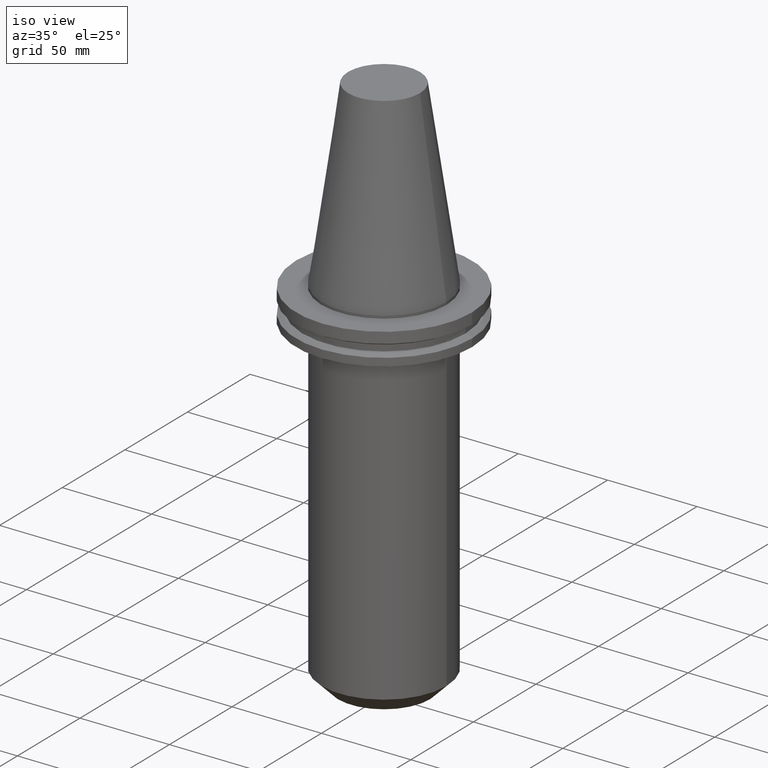
[diagram: clean part render]
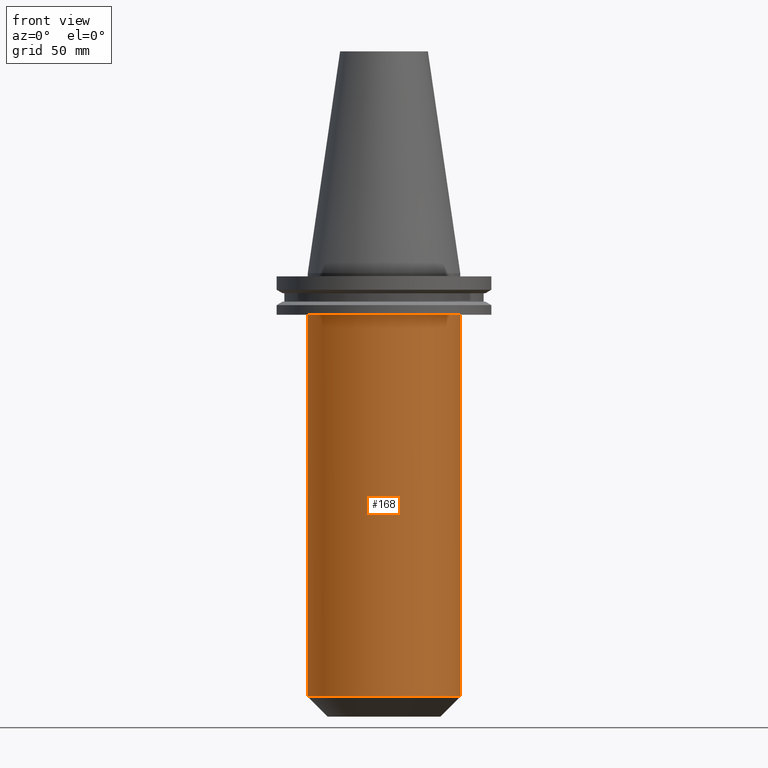
[diagram: tour spotlight — one face highlighted and labeled with its STEP entity id]
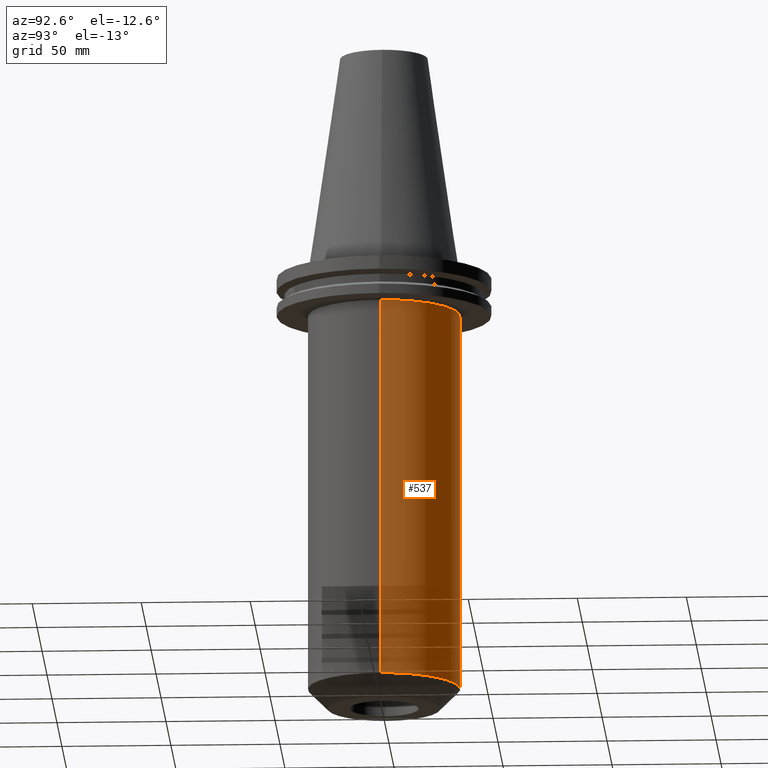
[diagram: tour spotlight — one face highlighted and labeled with its STEP entity id]
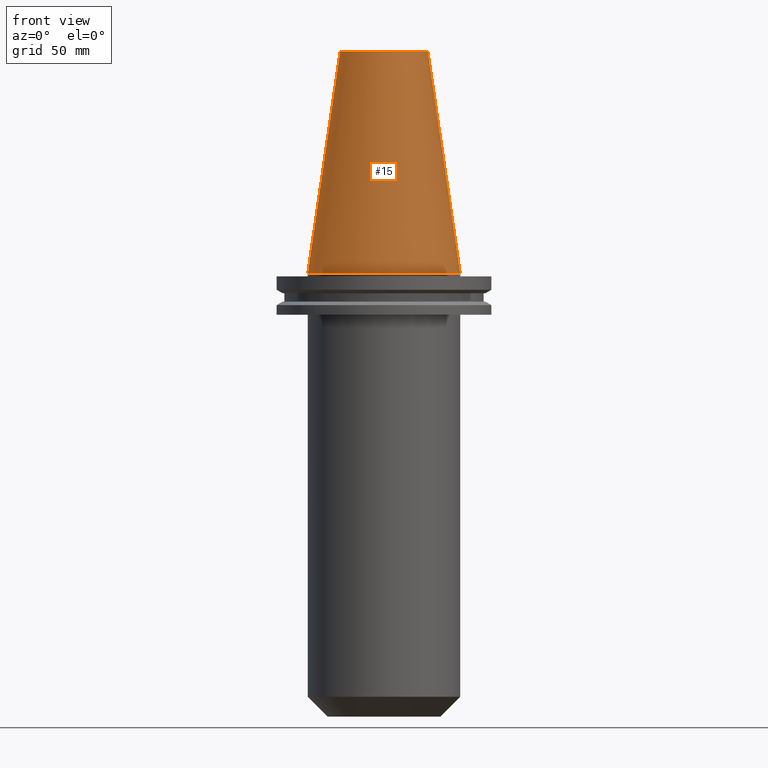
[diagram: tour spotlight — one face highlighted and labeled with its STEP entity id]
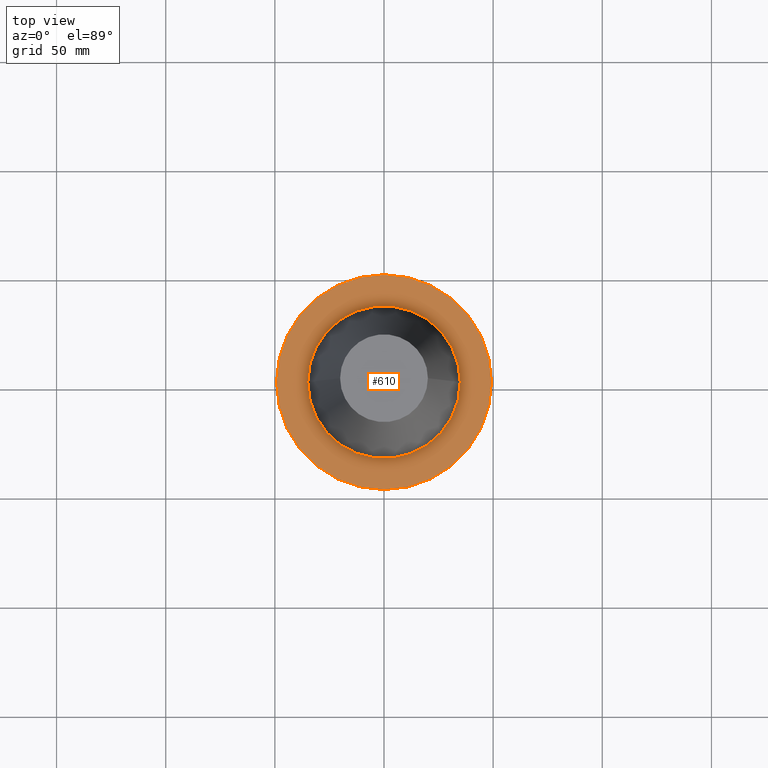
[diagram: tour spotlight — one face highlighted and labeled with its STEP entity id]
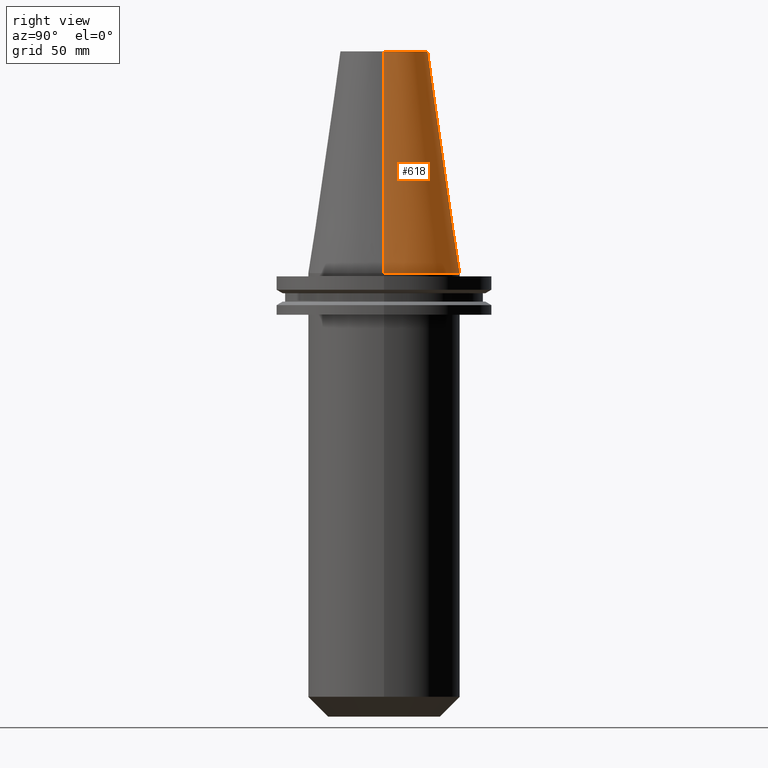
[diagram: tour spotlight — one face highlighted and labeled with its STEP entity id]
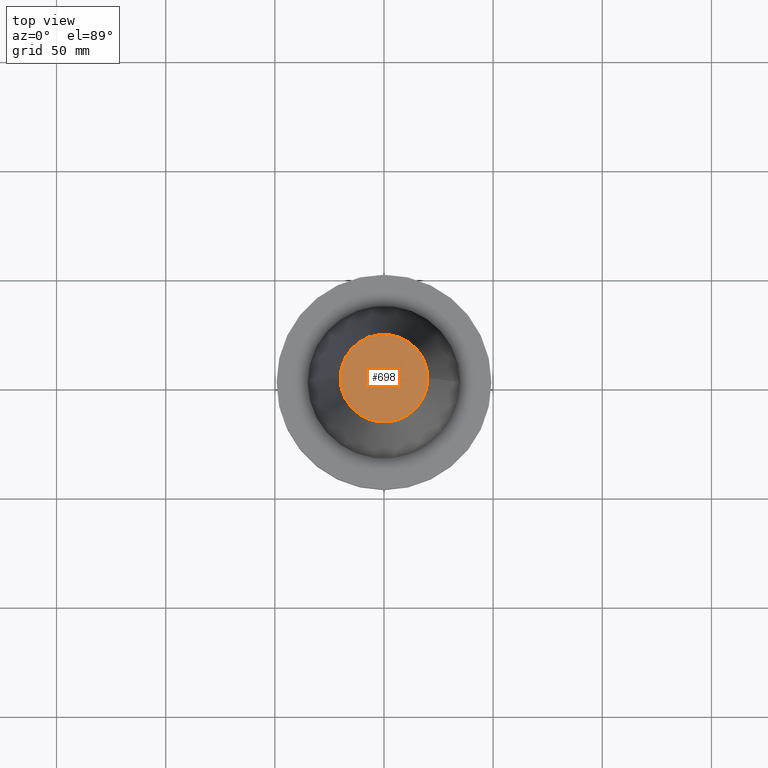
[diagram: tour spotlight — one face highlighted and labeled with its STEP entity id]
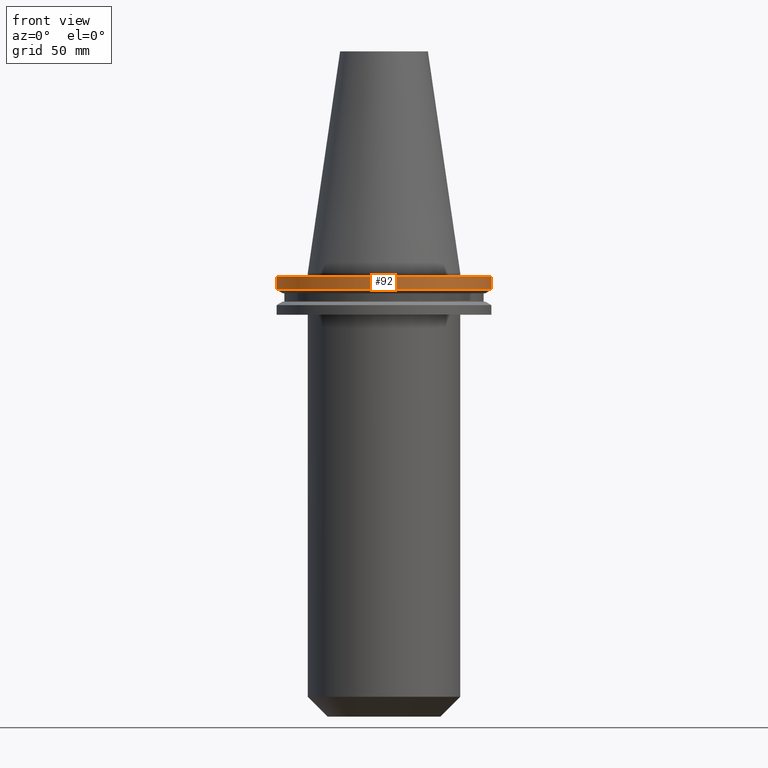
[diagram: tour spotlight — one face highlighted and labeled with its STEP entity id]
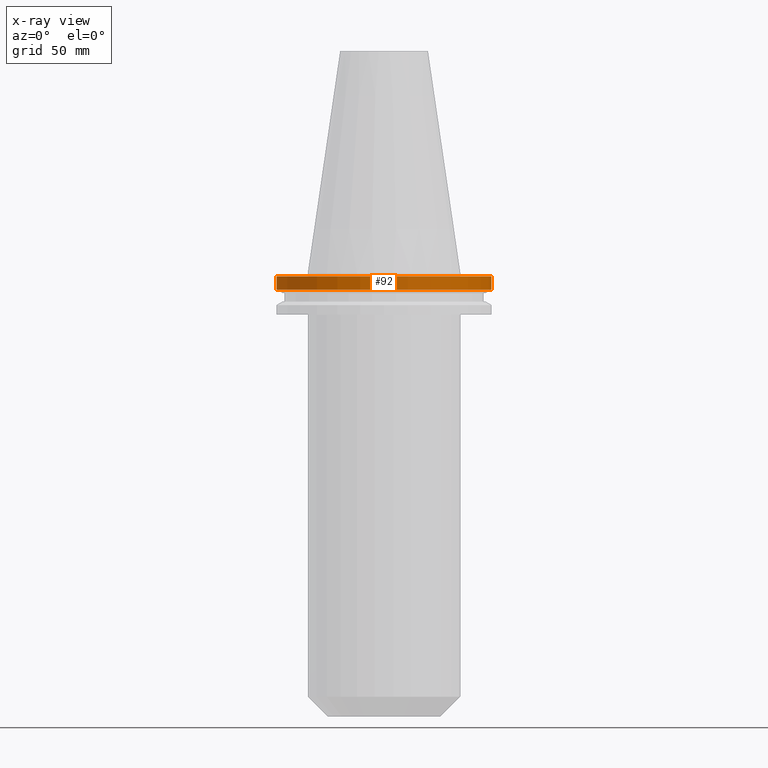
[diagram: x-ray of the same camera — body ghosted, this tour face saturated]
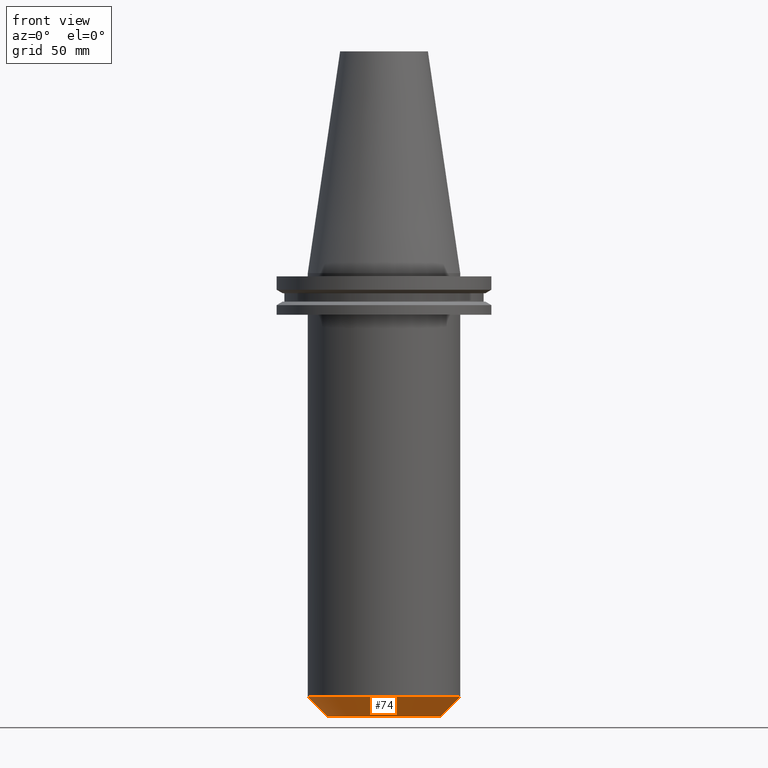
[diagram: tour spotlight — one face highlighted and labeled with its STEP entity id]
A machine part: a face-by-face anatomy tour. The part has 27 B-rep faces; the first image is the clean iso view, then the 8 largest visible faces are spotlighted one at a time (largest first), each with its STEP entity span.

Face 1 — front view, entity #168. In plain terms, the highlighted cylindrical surface (partial cylindrical patch) has radius 34.925 mm, axis along (-0, -0, 1).
Definition (entity closure, byte-faithful):
#3 = ORIENTED_EDGE ( 'NONE', *, *, #560, .T. ) ;
#7 = LINE ( 'NONE', #714, #218 ) ;
#22 = CIRCLE ( 'NONE', #184, 34.92500000000000426 ) ;
#35 = VERTEX_POINT ( 'NONE', #581 ) ;
#111 = CIRCLE ( 'NONE', #758, 34.92499999999999716 ) ;
#130 = CARTESIAN_POINT ( 'NONE',  ( 0.000000000000000000, 0.000000000000000000, 101.5999999999999943 ) ) ;
#168 = ADVANCED_FACE ( 'NONE', ( #480 ), #186, .T. ) ;
#184 = AXIS2_PLACEMENT_3D ( 'NONE', #528, #404, #185 ) ;
#185 = DIRECTION ( 'NONE',  ( 1.000000000000000000, 0.000000000000000000, 0.000000000000000000 ) ) ;
#186 = CYLINDRICAL_SURFACE ( 'NONE', #722, 34.92499999999999716 ) ;
#194 = VECTOR ( 'NONE', #637, 1000.000000000000000 ) ;
#211 = CARTESIAN_POINT ( 'NONE',  ( -34.92499999999999716, 4.277078946022130887E-15, -19.04999999999999716 ) ) ;
#218 = VECTOR ( 'NONE', #583, 1000.000000000000000 ) ;
#219 = DIRECTION ( 'NONE',  ( -0.000000000000000000, -0.000000000000000000, 1.000000000000000000 ) ) ;
#275 = VERTEX_POINT ( 'NONE', #211 ) ;
#332 = CARTESIAN_POINT ( 'NONE',  ( 34.92500000000000426, 0.000000000000000000, -194.0999999999999943 ) ) ;
#359 = DIRECTION ( 'NONE',  ( -0.000000000000000000, -0.000000000000000000, 1.000000000000000000 ) ) ;
#372 = EDGE_CURVE ( 'NONE', #538, #275, #760, .T. ) ;
#404 = DIRECTION ( 'NONE',  ( -0.000000000000000000, -0.000000000000000000, 1.000000000000000000 ) ) ;
#413 = CARTESIAN_POINT ( 'NONE',  ( -34.92500000000000426, 4.277078946022131676E-15, -194.0999999999999943 ) ) ;
#454 = DIRECTION ( 'NONE',  ( 1.000000000000000000, 0.000000000000000000, 0.000000000000000000 ) ) ;
#465 = EDGE_LOOP ( 'NONE', ( #517, #725, #3, #663 ) ) ;
#471 = VERTEX_POINT ( 'NONE', #332 ) ;
#473 = EDGE_CURVE ( 'NONE', #275, #35, #111, .T. ) ;
#480 = FACE_OUTER_BOUND ( 'NONE', #465, .T. ) ;
#495 = EDGE_CURVE ( 'NONE', #538, #471, #22, .T. ) ;
#517 = ORIENTED_EDGE ( 'NONE', *, *, #372, .F. ) ;
#528 = CARTESIAN_POINT ( 'NONE',  ( 0.000000000000000000, 0.000000000000000000, -194.0999999999999943 ) ) ;
#538 = VERTEX_POINT ( 'NONE', #413 ) ;
#560 = EDGE_CURVE ( 'NONE', #471, #35, #7, .T. ) ;
#580 = CARTESIAN_POINT ( 'NONE',  ( -34.92499999999999716, 4.277078946022130887E-15, 101.5999999999999943 ) ) ;
#581 = CARTESIAN_POINT ( 'NONE',  ( 34.92499999999999716, 0.000000000000000000, -19.04999999999999716 ) ) ;
#583 = DIRECTION ( 'NONE',  ( -0.000000000000000000, -0.000000000000000000, 1.000000000000000000 ) ) ;
#637 = DIRECTION ( 'NONE',  ( -0.000000000000000000, -0.000000000000000000, 1.000000000000000000 ) ) ;
#663 = ORIENTED_EDGE ( 'NONE', *, *, #473, .F. ) ;
#714 = CARTESIAN_POINT ( 'NONE',  ( 34.92499999999999716, 0.000000000000000000, 101.5999999999999943 ) ) ;
#722 = AXIS2_PLACEMENT_3D ( 'NONE', #130, #359, #771 ) ;
#725 = ORIENTED_EDGE ( 'NONE', *, *, #495, .T. ) ;
#755 = CARTESIAN_POINT ( 'NONE',  ( 0.000000000000000000, 0.000000000000000000, -19.04999999999999716 ) ) ;
#758 = AXIS2_PLACEMENT_3D ( 'NONE', #755, #219, #454 ) ;
#760 = LINE ( 'NONE', #580, #194 ) ;
#771 = DIRECTION ( 'NONE',  ( 1.000000000000000000, 0.000000000000000000, 0.000000000000000000 ) ) ;

Face 2 — auxiliary view, entity #537. In plain terms, the highlighted cylindrical surface (partial cylindrical patch) has radius 34.925 mm, axis along (-0, -0, 1).
Definition (entity closure, byte-faithful):
#7 = LINE ( 'NONE', #714, #218 ) ;
#20 = AXIS2_PLACEMENT_3D ( 'NONE', #544, #84, #506 ) ;
#35 = VERTEX_POINT ( 'NONE', #581 ) ;
#66 = DIRECTION ( 'NONE',  ( -0.000000000000000000, -0.000000000000000000, 1.000000000000000000 ) ) ;
#72 = AXIS2_PLACEMENT_3D ( 'NONE', #179, #66, #238 ) ;
#84 = DIRECTION ( 'NONE',  ( -0.000000000000000000, -0.000000000000000000, 1.000000000000000000 ) ) ;
#123 = CARTESIAN_POINT ( 'NONE',  ( 0.000000000000000000, 0.000000000000000000, -19.04999999999999716 ) ) ;
#146 = AXIS2_PLACEMENT_3D ( 'NONE', #123, #354, #591 ) ;
#148 = ORIENTED_EDGE ( 'NONE', *, *, #372, .T. ) ;
#179 = CARTESIAN_POINT ( 'NONE',  ( 0.000000000000000000, 0.000000000000000000, 101.5999999999999943 ) ) ;
#194 = VECTOR ( 'NONE', #637, 1000.000000000000000 ) ;
#211 = CARTESIAN_POINT ( 'NONE',  ( -34.92499999999999716, 4.277078946022130887E-15, -19.04999999999999716 ) ) ;
#218 = VECTOR ( 'NONE', #583, 1000.000000000000000 ) ;
#238 = DIRECTION ( 'NONE',  ( 1.000000000000000000, 0.000000000000000000, 0.000000000000000000 ) ) ;
#275 = VERTEX_POINT ( 'NONE', #211 ) ;
#312 = EDGE_CURVE ( 'NONE', #471, #538, #585, .T. ) ;
#332 = CARTESIAN_POINT ( 'NONE',  ( 34.92500000000000426, 0.000000000000000000, -194.0999999999999943 ) ) ;
#354 = DIRECTION ( 'NONE',  ( -0.000000000000000000, -0.000000000000000000, 1.000000000000000000 ) ) ;
#372 = EDGE_CURVE ( 'NONE', #538, #275, #760, .T. ) ;
#410 = CIRCLE ( 'NONE', #146, 34.92499999999999716 ) ;
#413 = CARTESIAN_POINT ( 'NONE',  ( -34.92500000000000426, 4.277078946022131676E-15, -194.0999999999999943 ) ) ;
#462 = ORIENTED_EDGE ( 'NONE', *, *, #560, .F. ) ;
#471 = VERTEX_POINT ( 'NONE', #332 ) ;
#506 = DIRECTION ( 'NONE',  ( 1.000000000000000000, 0.000000000000000000, 0.000000000000000000 ) ) ;
#522 = ORIENTED_EDGE ( 'NONE', *, *, #312, .T. ) ;
#523 = FACE_OUTER_BOUND ( 'NONE', #596, .T. ) ;
#537 = ADVANCED_FACE ( 'NONE', ( #523 ), #640, .T. ) ;
#538 = VERTEX_POINT ( 'NONE', #413 ) ;
#544 = CARTESIAN_POINT ( 'NONE',  ( 0.000000000000000000, 0.000000000000000000, -194.0999999999999943 ) ) ;
#560 = EDGE_CURVE ( 'NONE', #471, #35, #7, .T. ) ;
#563 = ORIENTED_EDGE ( 'NONE', *, *, #650, .F. ) ;
#580 = CARTESIAN_POINT ( 'NONE',  ( -34.92499999999999716, 4.277078946022130887E-15, 101.5999999999999943 ) ) ;
#581 = CARTESIAN_POINT ( 'NONE',  ( 34.92499999999999716, 0.000000000000000000, -19.04999999999999716 ) ) ;
#583 = DIRECTION ( 'NONE',  ( -0.000000000000000000, -0.000000000000000000, 1.000000000000000000 ) ) ;
#585 = CIRCLE ( 'NONE', #20, 34.92500000000000426 ) ;
#591 = DIRECTION ( 'NONE',  ( 1.000000000000000000, 0.000000000000000000, 0.000000000000000000 ) ) ;
#596 = EDGE_LOOP ( 'NONE', ( #522, #148, #563, #462 ) ) ;
#637 = DIRECTION ( 'NONE',  ( -0.000000000000000000, -0.000000000000000000, 1.000000000000000000 ) ) ;
#640 = CYLINDRICAL_SURFACE ( 'NONE', #72, 34.92499999999999716 ) ;
#650 = EDGE_CURVE ( 'NONE', #35, #275, #410, .T. ) ;
#714 = CARTESIAN_POINT ( 'NONE',  ( 34.92499999999999716, 0.000000000000000000, 101.5999999999999943 ) ) ;
#760 = LINE ( 'NONE', #580, #194 ) ;

Face 3 — front view, entity #15. In plain terms, the highlighted conical surface has half-angle 8.297 deg.
Definition (entity closure, byte-faithful):
#2 = DIRECTION ( 'NONE',  ( 1.000000000000000000, 0.000000000000000000, 0.000000000000000000 ) ) ;
#15 = ADVANCED_FACE ( 'NONE', ( #345 ), #564, .T. ) ;
#64 = DIRECTION ( 'NONE',  ( -0.1443082272672999988, 0.000000000000000000, -0.9895327864921755756 ) ) ;
#93 = VERTEX_POINT ( 'NONE', #592 ) ;
#108 = DIRECTION ( 'NONE',  ( -1.000000000000000000, 0.000000000000000000, 0.000000000000000000 ) ) ;
#135 = EDGE_LOOP ( 'NONE', ( #520, #707, #751, #542 ) ) ;
#140 = DIRECTION ( 'NONE',  ( -0.000000000000000000, -0.000000000000000000, 1.000000000000000000 ) ) ;
#149 = EDGE_CURVE ( 'NONE', #93, #674, #363, .T. ) ;
#151 = CARTESIAN_POINT ( 'NONE',  ( 20.10819343178871321, 3.369811209154858606E-15, 101.5999999999999801 ) ) ;
#156 = LINE ( 'NONE', #763, #427 ) ;
#167 = EDGE_CURVE ( 'NONE', #674, #256, #652, .T. ) ;
#208 = CARTESIAN_POINT ( 'NONE',  ( 34.92499999999999005, 4.277078946022130098E-15, 0.000000000000000000 ) ) ;
#249 = AXIS2_PLACEMENT_3D ( 'NONE', #460, #701, #108 ) ;
#252 = CARTESIAN_POINT ( 'NONE',  ( 0.000000000000000000, 0.000000000000000000, 0.000000000000000000 ) ) ;
#256 = VERTEX_POINT ( 'NONE', #208 ) ;
#262 = CARTESIAN_POINT ( 'NONE',  ( -34.92499999999999005, 0.000000000000000000, 0.000000000000000000 ) ) ;
#303 = VERTEX_POINT ( 'NONE', #151 ) ;
#345 = FACE_OUTER_BOUND ( 'NONE', #135, .T. ) ;
#349 = EDGE_CURVE ( 'NONE', #93, #303, #730, .T. ) ;
#363 = LINE ( 'NONE', #475, #415 ) ;
#368 = EDGE_CURVE ( 'NONE', #303, #256, #156, .T. ) ;
#380 = AXIS2_PLACEMENT_3D ( 'NONE', #252, #533, #2 ) ;
#415 = VECTOR ( 'NONE', #64, 999.9999999999998863 ) ;
#427 = VECTOR ( 'NONE', #566, 999.9999999999998863 ) ;
#460 = CARTESIAN_POINT ( 'NONE',  ( 0.000000000000000000, 0.000000000000000000, 0.000000000000000000 ) ) ;
#475 = CARTESIAN_POINT ( 'NONE',  ( -34.92499999999999005, 0.000000000000000000, 0.000000000000000000 ) ) ;
#520 = ORIENTED_EDGE ( 'NONE', *, *, #368, .F. ) ;
#533 = DIRECTION ( 'NONE',  ( -0.000000000000000000, -0.000000000000000000, 1.000000000000000000 ) ) ;
#542 = ORIENTED_EDGE ( 'NONE', *, *, #167, .T. ) ;
#564 = CONICAL_SURFACE ( 'NONE', #249, 34.92499999999999005, 0.1448138465474119452 ) ;
#566 = DIRECTION ( 'NONE',  ( 0.1443082272672999988, 1.767266086135277066E-17, -0.9895327864921755756 ) ) ;
#592 = CARTESIAN_POINT ( 'NONE',  ( -20.10819343178871321, 0.000000000000000000, 101.5999999999999801 ) ) ;
#608 = DIRECTION ( 'NONE',  ( 1.000000000000000000, 0.000000000000000000, 0.000000000000000000 ) ) ;
#652 = CIRCLE ( 'NONE', #380, 34.92499999999999005 ) ;
#667 = CARTESIAN_POINT ( 'NONE',  ( 0.000000000000000000, 0.000000000000000000, 101.5999999999999801 ) ) ;
#674 = VERTEX_POINT ( 'NONE', #262 ) ;
#693 = AXIS2_PLACEMENT_3D ( 'NONE', #667, #140, #608 ) ;
#701 = DIRECTION ( 'NONE',  ( 0.000000000000000000, 0.000000000000000000, -1.000000000000000000 ) ) ;
#707 = ORIENTED_EDGE ( 'NONE', *, *, #349, .F. ) ;
#730 = CIRCLE ( 'NONE', #693, 20.10819343178871321 ) ;
#751 = ORIENTED_EDGE ( 'NONE', *, *, #149, .T. ) ;
#763 = CARTESIAN_POINT ( 'NONE',  ( 34.92499999999999005, 4.277078946022130098E-15, 0.000000000000000000 ) ) ;

Face 4 — top view, entity #610. In plain terms, the highlighted planar face has unit normal (0, 0, -1).
Definition (entity closure, byte-faithful):
#1 = CARTESIAN_POINT ( 'NONE',  ( 0.000000000000000000, 49.21499999999999631, -1.499999999999992895 ) ) ;
#47 = CIRCLE ( 'NONE', #743, 34.92499999999999005 ) ;
#59 = CARTESIAN_POINT ( 'NONE',  ( 34.92499999999999005, 0.000000000000000000, -1.499999999999987566 ) ) ;
#79 = VERTEX_POINT ( 'NONE', #59 ) ;
#95 = DIRECTION ( 'NONE',  ( -0.000000000000000000, -0.000000000000000000, 1.000000000000000000 ) ) ;
#120 = DIRECTION ( 'NONE',  ( -0.000000000000000000, -0.000000000000000000, 1.000000000000000000 ) ) ;
#161 = CIRCLE ( 'NONE', #588, 49.21499999999999631 ) ;
#173 = DIRECTION ( 'NONE',  ( 1.000000000000000000, 0.000000000000000000, 0.000000000000000000 ) ) ;
#209 = VERTEX_POINT ( 'NONE', #587 ) ;
#230 = ORIENTED_EDGE ( 'NONE', *, *, #636, .F. ) ;
#234 = PLANE ( 'NONE',  #757 ) ;
#245 = DIRECTION ( 'NONE',  ( 1.000000000000000000, 0.000000000000000000, 0.000000000000000000 ) ) ;
#248 = ORIENTED_EDGE ( 'NONE', *, *, #604, .F. ) ;
#253 = VERTEX_POINT ( 'NONE', #546 ) ;
#284 = CARTESIAN_POINT ( 'NONE',  ( 0.000000000000000000, 0.000000000000000000, -1.499999999999987566 ) ) ;
#287 = ORIENTED_EDGE ( 'NONE', *, *, #606, .T. ) ;
#292 = DIRECTION ( 'NONE',  ( 1.000000000000000000, 0.000000000000000000, 0.000000000000000000 ) ) ;
#298 = DIRECTION ( 'NONE',  ( -0.000000000000000000, -0.000000000000000000, 1.000000000000000000 ) ) ;
#316 = AXIS2_PLACEMENT_3D ( 'NONE', #418, #298, #770 ) ;
#358 = DIRECTION ( 'NONE',  ( -1.000000000000000000, 0.000000000000000000, -0.000000000000000000 ) ) ;
#369 = VERTEX_POINT ( 'NONE', #750 ) ;
#383 = ORIENTED_EDGE ( 'NONE', *, *, #449, .T. ) ;
#396 = EDGE_LOOP ( 'NONE', ( #383, #287 ) ) ;
#409 = CARTESIAN_POINT ( 'NONE',  ( 0.000000000000000000, 0.000000000000000000, -1.499999999999987566 ) ) ;
#418 = CARTESIAN_POINT ( 'NONE',  ( 0.000000000000000000, 0.000000000000000000, -1.499999999999987566 ) ) ;
#449 = EDGE_CURVE ( 'NONE', #209, #253, #161, .T. ) ;
#469 = CIRCLE ( 'NONE', #706, 34.92499999999999005 ) ;
#540 = DIRECTION ( 'NONE',  ( 0.000000000000000000, 0.000000000000000000, -1.000000000000000000 ) ) ;
#546 = CARTESIAN_POINT ( 'NONE',  ( -49.21499999999999631, 6.027099222003697826E-15, -1.499999999999987566 ) ) ;
#586 = DIRECTION ( 'NONE',  ( -0.000000000000000000, -0.000000000000000000, 1.000000000000000000 ) ) ;
#587 = CARTESIAN_POINT ( 'NONE',  ( 49.21499999999999631, 0.000000000000000000, -1.499999999999987566 ) ) ;
#588 = AXIS2_PLACEMENT_3D ( 'NONE', #284, #95, #173 ) ;
#604 = EDGE_CURVE ( 'NONE', #79, #369, #469, .T. ) ;
#606 = EDGE_CURVE ( 'NONE', #253, #209, #645, .T. ) ;
#609 = EDGE_LOOP ( 'NONE', ( #248, #230 ) ) ;
#610 = ADVANCED_FACE ( 'NONE', ( #712, #656 ), #234, .F. ) ;
#636 = EDGE_CURVE ( 'NONE', #369, #79, #47, .T. ) ;
#645 = CIRCLE ( 'NONE', #316, 49.21499999999999631 ) ;
#646 = CARTESIAN_POINT ( 'NONE',  ( 0.000000000000000000, 0.000000000000000000, -1.499999999999987566 ) ) ;
#656 = FACE_OUTER_BOUND ( 'NONE', #396, .T. ) ;
#706 = AXIS2_PLACEMENT_3D ( 'NONE', #409, #586, #292 ) ;
#712 = FACE_BOUND ( 'NONE', #609, .T. ) ;
#743 = AXIS2_PLACEMENT_3D ( 'NONE', #646, #120, #245 ) ;
#750 = CARTESIAN_POINT ( 'NONE',  ( -34.92499999999999005, 4.277078946022130098E-15, -1.499999999999987566 ) ) ;
#757 = AXIS2_PLACEMENT_3D ( 'NONE', #1, #540, #358 ) ;
#770 = DIRECTION ( 'NONE',  ( 1.000000000000000000, 0.000000000000000000, 0.000000000000000000 ) ) ;

Face 5 — right view, entity #618. In plain terms, the highlighted conical surface has half-angle 8.297 deg.
Definition (entity closure, byte-faithful):
#11 = DIRECTION ( 'NONE',  ( 0.000000000000000000, 0.000000000000000000, -1.000000000000000000 ) ) ;
#19 = DIRECTION ( 'NONE',  ( 1.000000000000000000, 0.000000000000000000, 0.000000000000000000 ) ) ;
#50 = EDGE_LOOP ( 'NONE', ( #141, #187, #768, #711 ) ) ;
#64 = DIRECTION ( 'NONE',  ( -0.1443082272672999988, 0.000000000000000000, -0.9895327864921755756 ) ) ;
#93 = VERTEX_POINT ( 'NONE', #592 ) ;
#132 = DIRECTION ( 'NONE',  ( -0.000000000000000000, -0.000000000000000000, 1.000000000000000000 ) ) ;
#141 = ORIENTED_EDGE ( 'NONE', *, *, #516, .F. ) ;
#149 = EDGE_CURVE ( 'NONE', #93, #674, #363, .T. ) ;
#151 = CARTESIAN_POINT ( 'NONE',  ( 20.10819343178871321, 3.369811209154858606E-15, 101.5999999999999801 ) ) ;
#156 = LINE ( 'NONE', #763, #427 ) ;
#187 = ORIENTED_EDGE ( 'NONE', *, *, #368, .T. ) ;
#188 = DIRECTION ( 'NONE',  ( -0.000000000000000000, -0.000000000000000000, 1.000000000000000000 ) ) ;
#208 = CARTESIAN_POINT ( 'NONE',  ( 34.92499999999999005, 4.277078946022130098E-15, 0.000000000000000000 ) ) ;
#231 = AXIS2_PLACEMENT_3D ( 'NONE', #643, #11, #474 ) ;
#243 = AXIS2_PLACEMENT_3D ( 'NONE', #481, #188, #19 ) ;
#256 = VERTEX_POINT ( 'NONE', #208 ) ;
#262 = CARTESIAN_POINT ( 'NONE',  ( -34.92499999999999005, 0.000000000000000000, 0.000000000000000000 ) ) ;
#295 = CARTESIAN_POINT ( 'NONE',  ( 0.000000000000000000, 0.000000000000000000, 101.5999999999999801 ) ) ;
#303 = VERTEX_POINT ( 'NONE', #151 ) ;
#339 = CIRCLE ( 'NONE', #441, 20.10819343178871321 ) ;
#363 = LINE ( 'NONE', #475, #415 ) ;
#368 = EDGE_CURVE ( 'NONE', #303, #256, #156, .T. ) ;
#415 = VECTOR ( 'NONE', #64, 999.9999999999998863 ) ;
#427 = VECTOR ( 'NONE', #566, 999.9999999999998863 ) ;
#441 = AXIS2_PLACEMENT_3D ( 'NONE', #295, #132, #709 ) ;
#474 = DIRECTION ( 'NONE',  ( -1.000000000000000000, 0.000000000000000000, 0.000000000000000000 ) ) ;
#475 = CARTESIAN_POINT ( 'NONE',  ( -34.92499999999999005, 0.000000000000000000, 0.000000000000000000 ) ) ;
#481 = CARTESIAN_POINT ( 'NONE',  ( 0.000000000000000000, 0.000000000000000000, 0.000000000000000000 ) ) ;
#516 = EDGE_CURVE ( 'NONE', #303, #93, #339, .T. ) ;
#566 = DIRECTION ( 'NONE',  ( 0.1443082272672999988, 1.767266086135277066E-17, -0.9895327864921755756 ) ) ;
#571 = CIRCLE ( 'NONE', #243, 34.92499999999999005 ) ;
#592 = CARTESIAN_POINT ( 'NONE',  ( -20.10819343178871321, 0.000000000000000000, 101.5999999999999801 ) ) ;
#594 = FACE_OUTER_BOUND ( 'NONE', #50, .T. ) ;
#618 = ADVANCED_FACE ( 'NONE', ( #594 ), #717, .T. ) ;
#643 = CARTESIAN_POINT ( 'NONE',  ( 0.000000000000000000, 0.000000000000000000, 0.000000000000000000 ) ) ;
#669 = EDGE_CURVE ( 'NONE', #256, #674, #571, .T. ) ;
#674 = VERTEX_POINT ( 'NONE', #262 ) ;
#709 = DIRECTION ( 'NONE',  ( 1.000000000000000000, 0.000000000000000000, 0.000000000000000000 ) ) ;
#711 = ORIENTED_EDGE ( 'NONE', *, *, #149, .F. ) ;
#717 = CONICAL_SURFACE ( 'NONE', #231, 34.92499999999999005, 0.1448138465474119452 ) ;
#763 = CARTESIAN_POINT ( 'NONE',  ( 34.92499999999999005, 4.277078946022130098E-15, 0.000000000000000000 ) ) ;
#768 = ORIENTED_EDGE ( 'NONE', *, *, #669, .T. ) ;

Face 6 — top view, entity #698. In plain terms, the highlighted planar face has unit normal (0, 0, -1).
Definition (entity closure, byte-faithful):
#76 = AXIS2_PLACEMENT_3D ( 'NONE', #201, #80, #87 ) ;
#80 = DIRECTION ( 'NONE',  ( 0.000000000000000000, 0.000000000000000000, -1.000000000000000000 ) ) ;
#87 = DIRECTION ( 'NONE',  ( -1.000000000000000000, 0.000000000000000000, -0.000000000000000000 ) ) ;
#93 = VERTEX_POINT ( 'NONE', #592 ) ;
#132 = DIRECTION ( 'NONE',  ( -0.000000000000000000, -0.000000000000000000, 1.000000000000000000 ) ) ;
#140 = DIRECTION ( 'NONE',  ( -0.000000000000000000, -0.000000000000000000, 1.000000000000000000 ) ) ;
#151 = CARTESIAN_POINT ( 'NONE',  ( 20.10819343178871321, 3.369811209154858606E-15, 101.5999999999999801 ) ) ;
#201 = CARTESIAN_POINT ( 'NONE',  ( 0.000000000000000000, 20.10819343178871321, 101.5999999999999943 ) ) ;
#212 = ORIENTED_EDGE ( 'NONE', *, *, #349, .T. ) ;
#295 = CARTESIAN_POINT ( 'NONE',  ( 0.000000000000000000, 0.000000000000000000, 101.5999999999999801 ) ) ;
#303 = VERTEX_POINT ( 'NONE', #151 ) ;
#339 = CIRCLE ( 'NONE', #441, 20.10819343178871321 ) ;
#349 = EDGE_CURVE ( 'NONE', #93, #303, #730, .T. ) ;
#441 = AXIS2_PLACEMENT_3D ( 'NONE', #295, #132, #709 ) ;
#509 = EDGE_LOOP ( 'NONE', ( #212, #623 ) ) ;
#516 = EDGE_CURVE ( 'NONE', #303, #93, #339, .T. ) ;
#592 = CARTESIAN_POINT ( 'NONE',  ( -20.10819343178871321, 0.000000000000000000, 101.5999999999999801 ) ) ;
#608 = DIRECTION ( 'NONE',  ( 1.000000000000000000, 0.000000000000000000, 0.000000000000000000 ) ) ;
#617 = PLANE ( 'NONE',  #76 ) ;
#623 = ORIENTED_EDGE ( 'NONE', *, *, #516, .T. ) ;
#667 = CARTESIAN_POINT ( 'NONE',  ( 0.000000000000000000, 0.000000000000000000, 101.5999999999999801 ) ) ;
#675 = FACE_OUTER_BOUND ( 'NONE', #509, .T. ) ;
#693 = AXIS2_PLACEMENT_3D ( 'NONE', #667, #140, #608 ) ;
#698 = ADVANCED_FACE ( 'NONE', ( #675 ), #617, .F. ) ;
#709 = DIRECTION ( 'NONE',  ( 1.000000000000000000, 0.000000000000000000, 0.000000000000000000 ) ) ;
#730 = CIRCLE ( 'NONE', #693, 20.10819343178871321 ) ;

Face 7 — front view, entity #92. An x-ray twin of the same camera follows (body ghosted, this face saturated) — the face is partly hidden behind the body. In plain terms, the highlighted cylindrical surface (partial cylindrical patch) has radius 49.215 mm, axis along (-0, -0, 1).
Definition (entity closure, byte-faithful):
#42 = CARTESIAN_POINT ( 'NONE',  ( 49.21500000000000341, 0.000000000000000000, -7.602389855251287187 ) ) ;
#78 = DIRECTION ( 'NONE',  ( -0.000000000000000000, -0.000000000000000000, 1.000000000000000000 ) ) ;
#88 = DIRECTION ( 'NONE',  ( -0.000000000000000000, -0.000000000000000000, 1.000000000000000000 ) ) ;
#92 = ADVANCED_FACE ( 'NONE', ( #137 ), #134, .T. ) ;
#134 = CYLINDRICAL_SURFACE ( 'NONE', #497, 49.21499999999999631 ) ;
#137 = FACE_OUTER_BOUND ( 'NONE', #739, .T. ) ;
#142 = DIRECTION ( 'NONE',  ( 1.000000000000000000, 0.000000000000000000, 0.000000000000000000 ) ) ;
#193 = ORIENTED_EDGE ( 'NONE', *, *, #233, .F. ) ;
#209 = VERTEX_POINT ( 'NONE', #587 ) ;
#227 = ORIENTED_EDGE ( 'NONE', *, *, #773, .T. ) ;
#233 = EDGE_CURVE ( 'NONE', #728, #253, #619, .T. ) ;
#253 = VERTEX_POINT ( 'NONE', #546 ) ;
#261 = CIRCLE ( 'NONE', #772, 49.21500000000000341 ) ;
#286 = EDGE_CURVE ( 'NONE', #426, #209, #437, .T. ) ;
#298 = DIRECTION ( 'NONE',  ( -0.000000000000000000, -0.000000000000000000, 1.000000000000000000 ) ) ;
#314 = CARTESIAN_POINT ( 'NONE',  ( -49.21499999999999631, 6.027099222003697826E-15, 101.5999999999999943 ) ) ;
#316 = AXIS2_PLACEMENT_3D ( 'NONE', #418, #298, #770 ) ;
#322 = CARTESIAN_POINT ( 'NONE',  ( -49.21500000000000341, 6.027099222003699404E-15, -7.602389855251287187 ) ) ;
#411 = CARTESIAN_POINT ( 'NONE',  ( 0.000000000000000000, 0.000000000000000000, 101.5999999999999943 ) ) ;
#418 = CARTESIAN_POINT ( 'NONE',  ( 0.000000000000000000, 0.000000000000000000, -1.499999999999987566 ) ) ;
#426 = VERTEX_POINT ( 'NONE', #42 ) ;
#437 = LINE ( 'NONE', #603, #525 ) ;
#487 = DIRECTION ( 'NONE',  ( 1.000000000000000000, 0.000000000000000000, 0.000000000000000000 ) ) ;
#492 = ORIENTED_EDGE ( 'NONE', *, *, #606, .F. ) ;
#497 = AXIS2_PLACEMENT_3D ( 'NONE', #411, #647, #487 ) ;
#525 = VECTOR ( 'NONE', #78, 1000.000000000000000 ) ;
#534 = ORIENTED_EDGE ( 'NONE', *, *, #286, .T. ) ;
#546 = CARTESIAN_POINT ( 'NONE',  ( -49.21499999999999631, 6.027099222003697826E-15, -1.499999999999987566 ) ) ;
#548 = CARTESIAN_POINT ( 'NONE',  ( 0.000000000000000000, 0.000000000000000000, -7.602389855251287187 ) ) ;
#587 = CARTESIAN_POINT ( 'NONE',  ( 49.21499999999999631, 0.000000000000000000, -1.499999999999987566 ) ) ;
#603 = CARTESIAN_POINT ( 'NONE',  ( 49.21499999999999631, 0.000000000000000000, 101.5999999999999943 ) ) ;
#606 = EDGE_CURVE ( 'NONE', #253, #209, #645, .T. ) ;
#619 = LINE ( 'NONE', #314, #649 ) ;
#645 = CIRCLE ( 'NONE', #316, 49.21499999999999631 ) ;
#647 = DIRECTION ( 'NONE',  ( -0.000000000000000000, -0.000000000000000000, 1.000000000000000000 ) ) ;
#649 = VECTOR ( 'NONE', #88, 1000.000000000000000 ) ;
#660 = DIRECTION ( 'NONE',  ( -0.000000000000000000, -0.000000000000000000, 1.000000000000000000 ) ) ;
#728 = VERTEX_POINT ( 'NONE', #322 ) ;
#739 = EDGE_LOOP ( 'NONE', ( #193, #227, #534, #492 ) ) ;
#770 = DIRECTION ( 'NONE',  ( 1.000000000000000000, 0.000000000000000000, 0.000000000000000000 ) ) ;
#772 = AXIS2_PLACEMENT_3D ( 'NONE', #548, #660, #142 ) ;
#773 = EDGE_CURVE ( 'NONE', #728, #426, #261, .T. ) ;

Face 8 — front view, entity #74. In plain terms, the highlighted conical surface has half-angle 45 deg.
Definition (entity closure, byte-faithful):
#12 = DIRECTION ( 'NONE',  ( -0.000000000000000000, -0.000000000000000000, 1.000000000000000000 ) ) ;
#14 = EDGE_CURVE ( 'NONE', #443, #471, #104, .T. ) ;
#22 = CIRCLE ( 'NONE', #184, 34.92500000000000426 ) ;
#32 = ORIENTED_EDGE ( 'NONE', *, *, #495, .F. ) ;
#74 = ADVANCED_FACE ( 'NONE', ( #531 ), #630, .T. ) ;
#90 = DIRECTION ( 'NONE',  ( -0.000000000000000000, -0.000000000000000000, 1.000000000000000000 ) ) ;
#104 = LINE ( 'NONE', #225, #762 ) ;
#115 = DIRECTION ( 'NONE',  ( 0.7071067811865493491, 0.000000000000000000, 0.7071067811865456854 ) ) ;
#131 = ORIENTED_EDGE ( 'NONE', *, *, #176, .F. ) ;
#176 = EDGE_CURVE ( 'NONE', #766, #538, #302, .T. ) ;
#181 = DIRECTION ( 'NONE',  ( 1.000000000000000000, 0.000000000000000000, 0.000000000000000000 ) ) ;
#184 = AXIS2_PLACEMENT_3D ( 'NONE', #528, #404, #185 ) ;
#185 = DIRECTION ( 'NONE',  ( 1.000000000000000000, 0.000000000000000000, 0.000000000000000000 ) ) ;
#225 = CARTESIAN_POINT ( 'NONE',  ( 25.82499999999996021, 0.000000000000000000, -203.1999999999999886 ) ) ;
#282 = ORIENTED_EDGE ( 'NONE', *, *, #688, .T. ) ;
#283 = VECTOR ( 'NONE', #536, 1000.000000000000000 ) ;
#302 = LINE ( 'NONE', #644, #283 ) ;
#319 = CARTESIAN_POINT ( 'NONE',  ( 0.000000000000000000, 0.000000000000000000, -203.1999999999999886 ) ) ;
#332 = CARTESIAN_POINT ( 'NONE',  ( 34.92500000000000426, 0.000000000000000000, -194.0999999999999943 ) ) ;
#378 = AXIS2_PLACEMENT_3D ( 'NONE', #713, #12, #181 ) ;
#404 = DIRECTION ( 'NONE',  ( -0.000000000000000000, -0.000000000000000000, 1.000000000000000000 ) ) ;
#413 = CARTESIAN_POINT ( 'NONE',  ( -34.92500000000000426, 4.277078946022131676E-15, -194.0999999999999943 ) ) ;
#416 = EDGE_LOOP ( 'NONE', ( #131, #282, #639, #32 ) ) ;
#439 = CIRCLE ( 'NONE', #598, 25.82499999999996021 ) ;
#443 = VERTEX_POINT ( 'NONE', #510 ) ;
#471 = VERTEX_POINT ( 'NONE', #332 ) ;
#495 = EDGE_CURVE ( 'NONE', #538, #471, #22, .T. ) ;
#501 = CARTESIAN_POINT ( 'NONE',  ( -25.82499999999996021, 3.719864652410083281E-15, -203.1999999999999886 ) ) ;
#510 = CARTESIAN_POINT ( 'NONE',  ( 25.82499999999996021, 0.000000000000000000, -203.1999999999999886 ) ) ;
#528 = CARTESIAN_POINT ( 'NONE',  ( 0.000000000000000000, 0.000000000000000000, -194.0999999999999943 ) ) ;
#531 = FACE_OUTER_BOUND ( 'NONE', #416, .T. ) ;
#536 = DIRECTION ( 'NONE',  ( -0.7071067811865493491, 8.659560562354955045E-17, 0.7071067811865456854 ) ) ;
#538 = VERTEX_POINT ( 'NONE', #413 ) ;
#598 = AXIS2_PLACEMENT_3D ( 'NONE', #319, #90, #726 ) ;
#630 = CONICAL_SURFACE ( 'NONE', #378, 25.82499999999996021, 0.7853981633974509435 ) ;
#639 = ORIENTED_EDGE ( 'NONE', *, *, #14, .T. ) ;
#644 = CARTESIAN_POINT ( 'NONE',  ( -25.82499999999996021, 3.162650358798034491E-15, -203.1999999999999886 ) ) ;
#688 = EDGE_CURVE ( 'NONE', #766, #443, #439, .T. ) ;
#713 = CARTESIAN_POINT ( 'NONE',  ( 0.000000000000000000, 0.000000000000000000, -203.1999999999999886 ) ) ;
#726 = DIRECTION ( 'NONE',  ( 1.000000000000000000, 0.000000000000000000, 0.000000000000000000 ) ) ;
#762 = VECTOR ( 'NONE', #115, 1000.000000000000000 ) ;
#766 = VERTEX_POINT ( 'NONE', #501 ) ;